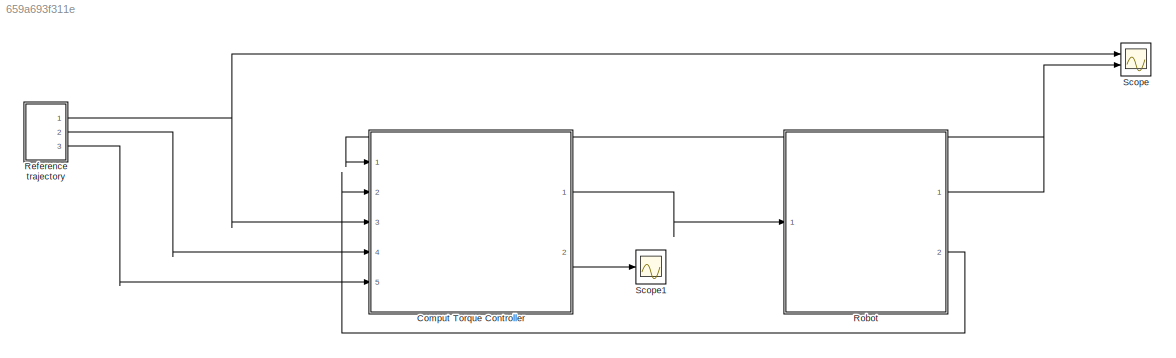
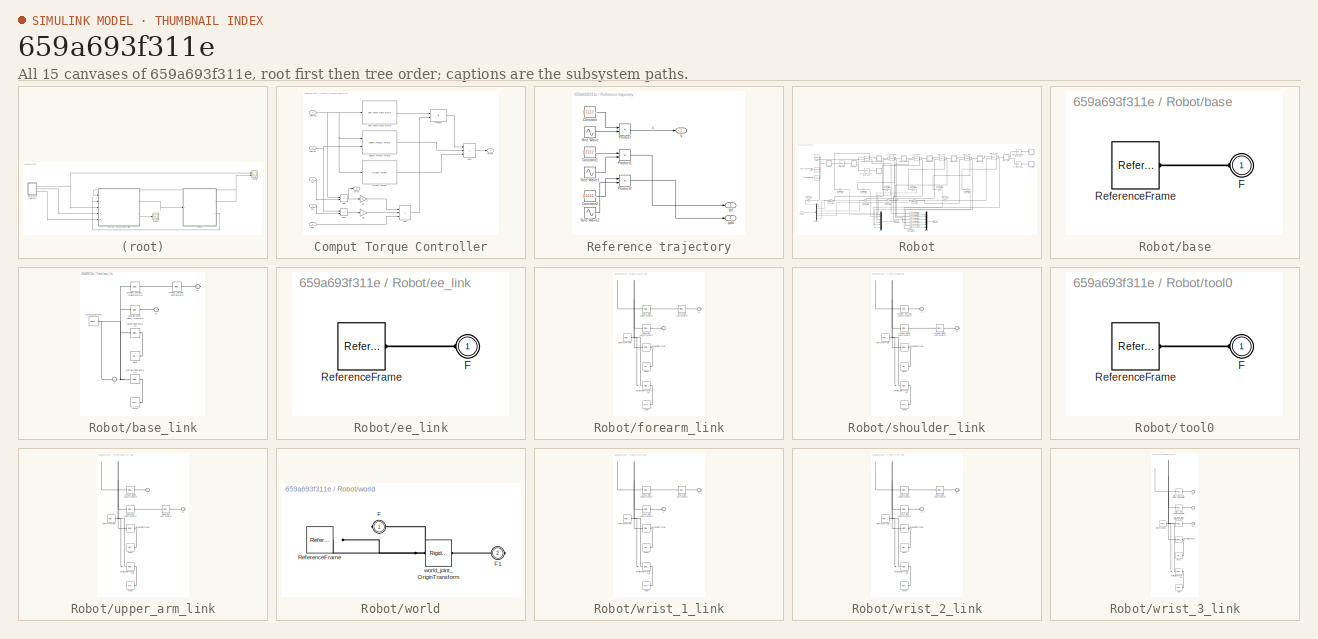
[diagram: thumbnail index - all 15 canvases of the model, root first then tree order]
MODEL slx_659a693f311e
KIND model
CONFIG AbsTol = auto
CONFIG EnableMultiTasking = off
CONFIG FixedStep = auto
CONFIG MaxStep = auto
CONFIG MinStep = auto
CONFIG RelTol = 1e-3
CONFIG SampleTimeConstraint = Unconstrained
CONFIG SolverName = VariableStepAuto
CONFIG StartTime = 0.0
CONFIG StopTime = 6.28
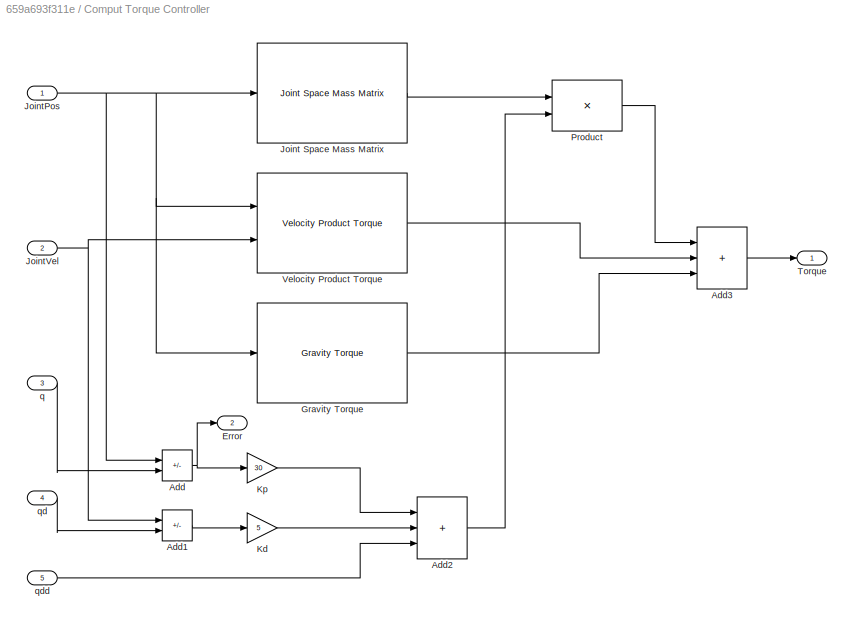
BLOCK [SubSystem] Comput Torque Controller
  Ports = [5, 2]
  RequestExecContextInheritance = off
BLOCK [Sum] Comput Torque Controller/Add
  IconShape = rectangular
  Inputs = -+
  Ports = [2, 1]
BLOCK [Sum] Comput Torque Controller/Add1
  IconShape = rectangular
  Inputs = -+
  Ports = [2, 1]
BLOCK [Sum] Comput Torque Controller/Add2
  IconShape = rectangular
  Inputs = +++
  Ports = [3, 1]
BLOCK [Sum] Comput Torque Controller/Add3
  IconShape = rectangular
  Inputs = +++
  Ports = [3, 1]
BLOCK [Outport] Comput Torque Controller/Error
  Port = 2
BLOCK [Reference] Comput Torque Controller/Gravity Torque  REF=robotmaniplib/Gravity Torque
  Ports = [1, 1]
  SourceBlock = robotmaniplib/Gravity Torque
  SourceProductBaseCode = RO
  SourceType = Gravity Torque
BLOCK [Reference] Comput Torque Controller/Joint Space Mass Matrix  REF=robotmaniplib/Joint Space Mass Matrix
  Ports = [1, 1]
  SourceBlock = robotmaniplib/Joint Space Mass Matrix
  SourceProductBaseCode = RO
  SourceType = Joint Space Mass Matrix
BLOCK [Inport] Comput Torque Controller/JointPos
BLOCK [Inport] Comput Torque Controller/JointVel
  Port = 2
BLOCK [Gain] Comput Torque Controller/Kd
  Gain = 5
BLOCK [Gain] Comput Torque Controller/Kp
  Gain = 30
BLOCK [Product] Comput Torque Controller/Product
  Multiplication = Matrix(*)
  Ports = [2, 1]
BLOCK [Outport] Comput Torque Controller/Torque
BLOCK [Reference] Comput Torque Controller/Velocity Product Torque  REF=robotmaniplib/Velocity Product Torque
  Ports = [2, 1]
  SourceBlock = robotmaniplib/Velocity Product Torque
  SourceProductBaseCode = RO
  SourceType = Velocity Product Torque
BLOCK [Inport] Comput Torque Controller/q
  Port = 3
BLOCK [Inport] Comput Torque Controller/qd
  Port = 4
BLOCK [Inport] Comput Torque Controller/qdd
  Port = 5
BLOCK [SubSystem] Reference trajectory
  Ports = [0, 3]
  RequestExecContextInheritance = off
BLOCK [Constant] Reference trajectory/Constant
  Value = [1 1 1 1 1 1]'
BLOCK [Constant] Reference trajectory/Constant1
  Value = [1 1 1 1 1 1]'
BLOCK [Constant] Reference trajectory/Constant2
  Value = [1 1 1 1 1 1]'
BLOCK [Product] Reference trajectory/Product
  Ports = [2, 1]
BLOCK [Product] Reference trajectory/Product1
  Ports = [2, 1]
BLOCK [Product] Reference trajectory/Product2
  Ports = [2, 1]
BLOCK [Sin] Reference trajectory/Sine Wave
  Ports = [0, 1]
  SampleTime = 0
BLOCK [Sin] Reference trajectory/Sine Wave1
  Phase = pi/2
  Ports = [0, 1]
  SampleTime = 0
BLOCK [Sin] Reference trajectory/Sine Wave2
  Phase = pi
  Ports = [0, 1]
  SampleTime = 0
BLOCK [Outport] Reference trajectory/q
BLOCK [Outport] Reference trajectory/qd
  Port = 2
BLOCK [Outport] Reference trajectory/qdd
  Port = 3
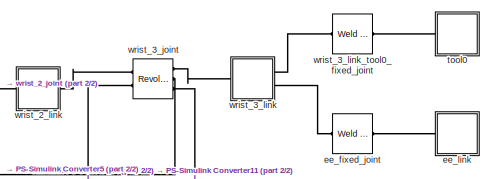
[diagram: Robot - part 1/2, top right region]
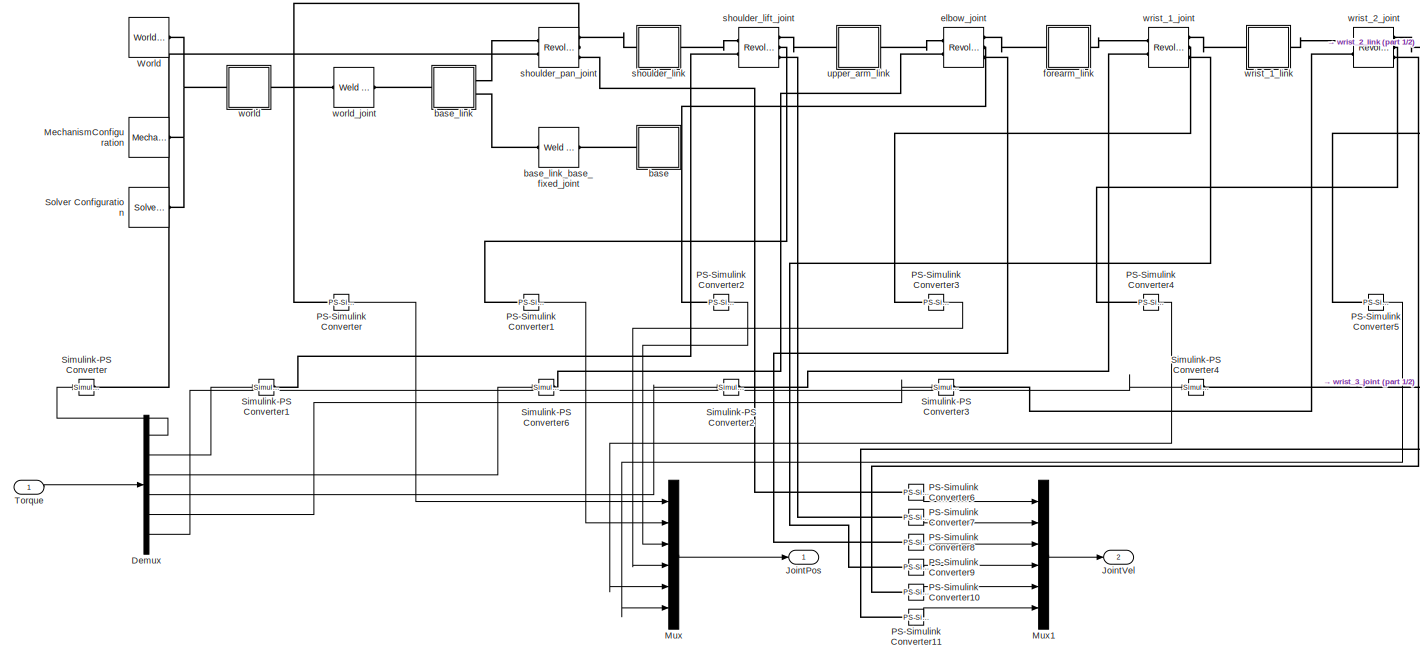
[diagram: Robot - part 2/2, most of the canvas]
BLOCK [SubSystem] Robot
  Ports = [1, 2]
  RequestExecContextInheritance = off
BLOCK [Demux] Robot/Demux
  Outputs = 6
  Ports = [1, 6]
BLOCK [Outport] Robot/JointPos
BLOCK [Outport] Robot/JointVel
  Port = 2
BLOCK [Reference] Robot/MechanismConfiguration  REF=sm_lib/Utilities/Mechanism
Configuration
  Ports = [0, 0, 0, 0, 0, 0, 1]
  SourceBlock = sm_lib/Utilities/Mechanism\nConfiguration
  SourceProductBaseCode = MS
  SourceType = Mechanism\nConfiguration
BLOCK [Mux] Robot/Mux
  DisplayOption = bar
  Inputs = 6
  Ports = [6, 1]
BLOCK [Mux] Robot/Mux1
  DisplayOption = bar
  Inputs = 6
  Ports = [6, 1]
BLOCK [Reference] Robot/PS-Simulink Converter  REF=nesl_utility/PS-Simulink
Converter
  Ports = [0, 1, 0, 0, 0, 1]
  SourceBlock = nesl_utility/PS-Simulink\nConverter
  SourceProductBaseCode = SS,PW,VE
  SourceType = PS-Simulink\nConverter
BLOCK [Reference] Robot/PS-Simulink Converter1  REF=nesl_utility/PS-Simulink
Converter
  Ports = [0, 1, 0, 0, 0, 1]
  SourceBlock = nesl_utility/PS-Simulink\nConverter
  SourceProductBaseCode = SS,PW,VE
  SourceType = PS-Simulink\nConverter
BLOCK [Reference] Robot/PS-Simulink Converter10  REF=nesl_utility/PS-Simulink
Converter
  Ports = [0, 1, 0, 0, 0, 1]
  SourceBlock = nesl_utility/PS-Simulink\nConverter
  SourceProductBaseCode = SS,PW,VE
  SourceType = PS-Simulink\nConverter
BLOCK [Reference] Robot/PS-Simulink Converter11  REF=nesl_utility/PS-Simulink
Converter
  Ports = [0, 1, 0, 0, 0, 1]
  SourceBlock = nesl_utility/PS-Simulink\nConverter
  SourceProductBaseCode = SS,PW,VE
  SourceType = PS-Simulink\nConverter
BLOCK [Reference] Robot/PS-Simulink Converter2  REF=nesl_utility/PS-Simulink
Converter
  Ports = [0, 1, 0, 0, 0, 1]
  SourceBlock = nesl_utility/PS-Simulink\nConverter
  SourceProductBaseCode = SS,PW,VE
  SourceType = PS-Simulink\nConverter
BLOCK [Reference] Robot/PS-Simulink Converter3  REF=nesl_utility/PS-Simulink
Converter
  Ports = [0, 1, 0, 0, 0, 1]
  SourceBlock = nesl_utility/PS-Simulink\nConverter
  SourceProductBaseCode = SS,PW,VE
  SourceType = PS-Simulink\nConverter
BLOCK [Reference] Robot/PS-Simulink Converter4  REF=nesl_utility/PS-Simulink
Converter
  Ports = [0, 1, 0, 0, 0, 1]
  SourceBlock = nesl_utility/PS-Simulink\nConverter
  SourceProductBaseCode = SS,PW,VE
  SourceType = PS-Simulink\nConverter
BLOCK [Reference] Robot/PS-Simulink Converter5  REF=nesl_utility/PS-Simulink
Converter
  Ports = [0, 1, 0, 0, 0, 1]
  SourceBlock = nesl_utility/PS-Simulink\nConverter
  SourceProductBaseCode = SS,PW,VE
  SourceType = PS-Simulink\nConverter
BLOCK [Reference] Robot/PS-Simulink Converter6  REF=nesl_utility/PS-Simulink
Converter
  Ports = [0, 1, 0, 0, 0, 1]
  SourceBlock = nesl_utility/PS-Simulink\nConverter
  SourceProductBaseCode = SS,PW,VE
  SourceType = PS-Simulink\nConverter
BLOCK [Reference] Robot/PS-Simulink Converter7  REF=nesl_utility/PS-Simulink
Converter
  Ports = [0, 1, 0, 0, 0, 1]
  SourceBlock = nesl_utility/PS-Simulink\nConverter
  SourceProductBaseCode = SS,PW,VE
  SourceType = PS-Simulink\nConverter
BLOCK [Reference] Robot/PS-Simulink Converter8  REF=nesl_utility/PS-Simulink
Converter
  Ports = [0, 1, 0, 0, 0, 1]
  SourceBlock = nesl_utility/PS-Simulink\nConverter
  SourceProductBaseCode = SS,PW,VE
  SourceType = PS-Simulink\nConverter
BLOCK [Reference] Robot/PS-Simulink Converter9  REF=nesl_utility/PS-Simulink
Converter
  Ports = [0, 1, 0, 0, 0, 1]
  SourceBlock = nesl_utility/PS-Simulink\nConverter
  SourceProductBaseCode = SS,PW,VE
  SourceType = PS-Simulink\nConverter
BLOCK [Reference] Robot/Simulink-PS Converter  REF=nesl_utility/Simulink-PS
Converter
  Ports = [1, 0, 0, 0, 0, 0, 1]
  SourceBlock = nesl_utility/Simulink-PS\nConverter
  SourceProductBaseCode = SS,PW,VE
  SourceType = Simulink-PS\nConverter
BLOCK [Reference] Robot/Simulink-PS Converter1  REF=nesl_utility/Simulink-PS
Converter
  Ports = [1, 0, 0, 0, 0, 0, 1]
  SourceBlock = nesl_utility/Simulink-PS\nConverter
  SourceProductBaseCode = SS,PW,VE
  SourceType = Simulink-PS\nConverter
BLOCK [Reference] Robot/Simulink-PS Converter2  REF=nesl_utility/Simulink-PS
Converter
  Ports = [1, 0, 0, 0, 0, 0, 1]
  SourceBlock = nesl_utility/Simulink-PS\nConverter
  SourceProductBaseCode = SS,PW,VE
  SourceType = Simulink-PS\nConverter
BLOCK [Reference] Robot/Simulink-PS Converter3  REF=nesl_utility/Simulink-PS
Converter
  Ports = [1, 0, 0, 0, 0, 0, 1]
  SourceBlock = nesl_utility/Simulink-PS\nConverter
  SourceProductBaseCode = SS,PW,VE
  SourceType = Simulink-PS\nConverter
BLOCK [Reference] Robot/Simulink-PS Converter4  REF=nesl_utility/Simulink-PS
Converter
  Ports = [1, 0, 0, 0, 0, 0, 1]
  SourceBlock = nesl_utility/Simulink-PS\nConverter
  SourceProductBaseCode = SS,PW,VE
  SourceType = Simulink-PS\nConverter
BLOCK [Reference] Robot/Simulink-PS Converter6  REF=nesl_utility/Simulink-PS
Converter
  Ports = [1, 0, 0, 0, 0, 0, 1]
  SourceBlock = nesl_utility/Simulink-PS\nConverter
  SourceProductBaseCode = SS,PW,VE
  SourceType = Simulink-PS\nConverter
BLOCK [Reference] Robot/Solver Configuration  REF=nesl_utility/Solver
Configuration
  Ports = [0, 0, 0, 0, 0, 0, 1]
  SourceBlock = nesl_utility/Solver\nConfiguration
  SourceProductBaseCode = SS,PW,VE
  SourceType = Solver\nConfiguration
BLOCK [Inport] Robot/Torque
BLOCK [Reference] Robot/World  REF=sm_lib/Frames and
Transforms/World Frame
  Ports = [0, 0, 0, 0, 0, 0, 1]
  SourceBlock = sm_lib/Frames and\nTransforms/World Frame
  SourceProductBaseCode = MS
  SourceType = World Frame
BLOCK [SubSystem] Robot/base
  Ports = [0, 0, 0, 0, 0, 1]
  RequestExecContextInheritance = off
BLOCK [PMIOPort] Robot/base/F
  Side = Left
BLOCK [Reference] Robot/base/ReferenceFrame  REF=sm_lib/Frames and
Transforms/Reference
Frame
  Ports = [0, 0, 0, 0, 0, 0, 1]
  SourceBlock = sm_lib/Frames and\nTransforms/Reference\nFrame
  SourceProductBaseCode = MS
  SourceType = Reference\nFrame
BLOCK [SubSystem] Robot/base_link
  Ports = [0, 0, 0, 0, 0, 1, 2]
  RequestExecContextInheritance = off
BLOCK [PMIOPort] Robot/base_link/F
  Side = Left
BLOCK [PMIOPort] Robot/base_link/F1
  Port = 3
  Side = Right
BLOCK [PMIOPort] Robot/base_link/F2
  Port = 2
  Side = Right
BLOCK [Reference] Robot/base_link/Inertia  REF=sm_lib/Body Elements/Inertia
  Ports = [0, 0, 0, 0, 0, 0, 1]
  SourceBlock = sm_lib/Body Elements/Inertia
  SourceProductBaseCode = MS
  SourceType = Inertia
BLOCK [Reference] Robot/base_link/InertiaOriginTransform  REF=sm_lib/Frames and
Transforms/Rigid
Transform
  Ports = [0, 0, 0, 0, 0, 1, 1]
  SourceBlock = sm_lib/Frames and\nTransforms/Rigid\nTransform
  SourceProductBaseCode = MS
  SourceType = Rigid\nTransform
BLOCK [Reference] Robot/base_link/ReferenceFrame  REF=sm_lib/Frames and
Transforms/Reference
Frame
  Ports = [0, 0, 0, 0, 0, 0, 1]
  SourceBlock = sm_lib/Frames and\nTransforms/Reference\nFrame
  SourceProductBaseCode = MS
  SourceType = Reference\nFrame
BLOCK [Reference] Robot/base_link/Visual  REF=sm_lib/Body Elements/File Solid
  Ports = [0, 0, 0, 0, 0, 0, 1]
  SourceBlock = sm_lib/Body Elements/File Solid
  SourceProductBaseCode = MS
  SourceType = File Solid
BLOCK [Reference] Robot/base_link/VisualOriginTransform  REF=sm_lib/Frames and
Transforms/Rigid
Transform
  Ports = [0, 0, 0, 0, 0, 1, 1]
  SourceBlock = sm_lib/Frames and\nTransforms/Rigid\nTransform
  SourceProductBaseCode = MS
  SourceType = Rigid\nTransform
BLOCK [Reference] Robot/base_link/base_link_base_fixed_joint_OriginTransform  REF=sm_lib/Frames and
Transforms/Rigid
Transform
  Ports = [0, 0, 0, 0, 0, 1, 1]
  SourceBlock = sm_lib/Frames and\nTransforms/Rigid\nTransform
  SourceProductBaseCode = MS
  SourceType = Rigid\nTransform
BLOCK [Reference] Robot/base_link/shoulder_pan_joint_AxisTransform  REF=sm_lib/Frames and
Transforms/Rigid
Transform
  Ports = [0, 0, 0, 0, 0, 1, 1]
  SourceBlock = sm_lib/Frames and\nTransforms/Rigid\nTransform
  SourceProductBaseCode = MS
  SourceType = Rigid\nTransform
BLOCK [Reference] Robot/base_link/shoulder_pan_joint_OriginTransform  REF=sm_lib/Frames and
Transforms/Rigid
Transform
  Ports = [0, 0, 0, 0, 0, 1, 1]
  SourceBlock = sm_lib/Frames and\nTransforms/Rigid\nTransform
  SourceProductBaseCode = MS
  SourceType = Rigid\nTransform
BLOCK [Reference] Robot/base_link_base_fixed_joint  REF=sm_lib/Joints/Weld Joint
  Ports = [0, 0, 0, 0, 0, 1, 1]
  SourceBlock = sm_lib/Joints/Weld Joint
  SourceProductBaseCode = MS
  SourceType = Weld Joint
BLOCK [Reference] Robot/ee_fixed_joint  REF=sm_lib/Joints/Weld Joint
  Ports = [0, 0, 0, 0, 0, 1, 1]
  SourceBlock = sm_lib/Joints/Weld Joint
  SourceProductBaseCode = MS
  SourceType = Weld Joint
BLOCK [SubSystem] Robot/ee_link
  Ports = [0, 0, 0, 0, 0, 1]
  RequestExecContextInheritance = off
BLOCK [PMIOPort] Robot/ee_link/F
  Side = Left
BLOCK [Reference] Robot/ee_link/ReferenceFrame  REF=sm_lib/Frames and
Transforms/Reference
Frame
  Ports = [0, 0, 0, 0, 0, 0, 1]
  SourceBlock = sm_lib/Frames and\nTransforms/Reference\nFrame
  SourceProductBaseCode = MS
  SourceType = Reference\nFrame
BLOCK [Reference] Robot/elbow_joint  REF=sm_lib/Joints/Revolute Joint
  Ports = [0, 0, 0, 0, 0, 2, 3]
  SourceBlock = sm_lib/Joints/Revolute Joint
  SourceProductBaseCode = MS
  SourceType = Revolute Joint
BLOCK [SubSystem] Robot/forearm_link
  Ports = [0, 0, 0, 0, 0, 1, 1]
  RequestExecContextInheritance = off
BLOCK [PMIOPort] Robot/forearm_link/F
  Side = Left
BLOCK [PMIOPort] Robot/forearm_link/F1
  Port = 2
  Side = Right
BLOCK [Reference] Robot/forearm_link/Inertia  REF=sm_lib/Body Elements/Inertia
  Ports = [0, 0, 0, 0, 0, 0, 1]
  SourceBlock = sm_lib/Body Elements/Inertia
  SourceProductBaseCode = MS
  SourceType = Inertia
BLOCK [Reference] Robot/forearm_link/InertiaOriginTransform  REF=sm_lib/Frames and
Transforms/Rigid
Transform
  Ports = [0, 0, 0, 0, 0, 1, 1]
  SourceBlock = sm_lib/Frames and\nTransforms/Rigid\nTransform
  SourceProductBaseCode = MS
  SourceType = Rigid\nTransform
BLOCK [Reference] Robot/forearm_link/ReferenceFrame  REF=sm_lib/Frames and
Transforms/Reference
Frame
  Ports = [0, 0, 0, 0, 0, 0, 1]
  SourceBlock = sm_lib/Frames and\nTransforms/Reference\nFrame
  SourceProductBaseCode = MS
  SourceType = Reference\nFrame
BLOCK [Reference] Robot/forearm_link/Visual  REF=sm_lib/Body Elements/File Solid
  Ports = [0, 0, 0, 0, 0, 0, 1]
  SourceBlock = sm_lib/Body Elements/File Solid
  SourceProductBaseCode = MS
  SourceType = File Solid
BLOCK [Reference] Robot/forearm_link/VisualOriginTransform  REF=sm_lib/Frames and
Transforms/Rigid
Transform
  Ports = [0, 0, 0, 0, 0, 1, 1]
  SourceBlock = sm_lib/Frames and\nTransforms/Rigid\nTransform
  SourceProductBaseCode = MS
  SourceType = Rigid\nTransform
BLOCK [Reference] Robot/forearm_link/elbow_joint_AxisInvTransform  REF=sm_lib/Frames and
Transforms/Rigid
Transform
  Ports = [0, 0, 0, 0, 0, 1, 1]
  SourceBlock = sm_lib/Frames and\nTransforms/Rigid\nTransform
  SourceProductBaseCode = MS
  SourceType = Rigid\nTransform
BLOCK [Reference] Robot/forearm_link/wrist_1_joint_AxisTransform  REF=sm_lib/Frames and
Transforms/Rigid
Transform
  Ports = [0, 0, 0, 0, 0, 1, 1]
  SourceBlock = sm_lib/Frames and\nTransforms/Rigid\nTransform
  SourceProductBaseCode = MS
  SourceType = Rigid\nTransform
BLOCK [Reference] Robot/forearm_link/wrist_1_joint_OriginTransform  REF=sm_lib/Frames and
Transforms/Rigid
Transform
  Ports = [0, 0, 0, 0, 0, 1, 1]
  SourceBlock = sm_lib/Frames and\nTransforms/Rigid\nTransform
  SourceProductBaseCode = MS
  SourceType = Rigid\nTransform
BLOCK [Reference] Robot/shoulder_lift_joint  REF=sm_lib/Joints/Revolute Joint
  Ports = [0, 0, 0, 0, 0, 2, 3]
  SourceBlock = sm_lib/Joints/Revolute Joint
  SourceProductBaseCode = MS
  SourceType = Revolute Joint
BLOCK [SubSystem] Robot/shoulder_link
  Ports = [0, 0, 0, 0, 0, 1, 1]
  RequestExecContextInheritance = off
BLOCK [PMIOPort] Robot/shoulder_link/F
  Side = Left
BLOCK [PMIOPort] Robot/shoulder_link/F1
  Port = 2
  Side = Right
BLOCK [Reference] Robot/shoulder_link/Inertia  REF=sm_lib/Body Elements/Inertia
  Ports = [0, 0, 0, 0, 0, 0, 1]
  SourceBlock = sm_lib/Body Elements/Inertia
  SourceProductBaseCode = MS
  SourceType = Inertia
BLOCK [Reference] Robot/shoulder_link/InertiaOriginTransform  REF=sm_lib/Frames and
Transforms/Rigid
Transform
  Ports = [0, 0, 0, 0, 0, 1, 1]
  SourceBlock = sm_lib/Frames and\nTransforms/Rigid\nTransform
  SourceProductBaseCode = MS
  SourceType = Rigid\nTransform
BLOCK [Reference] Robot/shoulder_link/ReferenceFrame  REF=sm_lib/Frames and
Transforms/Reference
Frame
  Ports = [0, 0, 0, 0, 0, 0, 1]
  SourceBlock = sm_lib/Frames and\nTransforms/Reference\nFrame
  SourceProductBaseCode = MS
  SourceType = Reference\nFrame
BLOCK [Reference] Robot/shoulder_link/Visual  REF=sm_lib/Body Elements/File Solid
  Ports = [0, 0, 0, 0, 0, 0, 1]
  SourceBlock = sm_lib/Body Elements/File Solid
  SourceProductBaseCode = MS
  SourceType = File Solid
BLOCK [Reference] Robot/shoulder_link/VisualOriginTransform  REF=sm_lib/Frames and
Transforms/Rigid
Transform
  Ports = [0, 0, 0, 0, 0, 1, 1]
  SourceBlock = sm_lib/Frames and\nTransforms/Rigid\nTransform
  SourceProductBaseCode = MS
  SourceType = Rigid\nTransform
BLOCK [Reference] Robot/shoulder_link/shoulder_lift_joint_AxisTransform  REF=sm_lib/Frames and
Transforms/Rigid
Transform
  Ports = [0, 0, 0, 0, 0, 1, 1]
  SourceBlock = sm_lib/Frames and\nTransforms/Rigid\nTransform
  SourceProductBaseCode = MS
  SourceType = Rigid\nTransform
BLOCK [Reference] Robot/shoulder_link/shoulder_lift_joint_OriginTransform  REF=sm_lib/Frames and
Transforms/Rigid
Transform
  Ports = [0, 0, 0, 0, 0, 1, 1]
  SourceBlock = sm_lib/Frames and\nTransforms/Rigid\nTransform
  SourceProductBaseCode = MS
  SourceType = Rigid\nTransform
BLOCK [Reference] Robot/shoulder_link/shoulder_pan_joint_AxisInvTransform  REF=sm_lib/Frames and
Transforms/Rigid
Transform
  Ports = [0, 0, 0, 0, 0, 1, 1]
  SourceBlock = sm_lib/Frames and\nTransforms/Rigid\nTransform
  SourceProductBaseCode = MS
  SourceType = Rigid\nTransform
BLOCK [Reference] Robot/shoulder_pan_joint  REF=sm_lib/Joints/Revolute Joint
  Ports = [0, 0, 0, 0, 0, 2, 3]
  SourceBlock = sm_lib/Joints/Revolute Joint
  SourceProductBaseCode = MS
  SourceType = Revolute Joint
BLOCK [SubSystem] Robot/tool0
  Ports = [0, 0, 0, 0, 0, 1]
  RequestExecContextInheritance = off
BLOCK [PMIOPort] Robot/tool0/F
  Side = Left
BLOCK [Reference] Robot/tool0/ReferenceFrame  REF=sm_lib/Frames and
Transforms/Reference
Frame
  Ports = [0, 0, 0, 0, 0, 0, 1]
  SourceBlock = sm_lib/Frames and\nTransforms/Reference\nFrame
  SourceProductBaseCode = MS
  SourceType = Reference\nFrame
BLOCK [SubSystem] Robot/upper_arm_link
  Ports = [0, 0, 0, 0, 0, 1, 1]
  RequestExecContextInheritance = off
BLOCK [PMIOPort] Robot/upper_arm_link/F
  Side = Left
BLOCK [PMIOPort] Robot/upper_arm_link/F1
  Port = 2
  Side = Right
BLOCK [Reference] Robot/upper_arm_link/Inertia  REF=sm_lib/Body Elements/Inertia
  Ports = [0, 0, 0, 0, 0, 0, 1]
  SourceBlock = sm_lib/Body Elements/Inertia
  SourceProductBaseCode = MS
  SourceType = Inertia
BLOCK [Reference] Robot/upper_arm_link/InertiaOriginTransform  REF=sm_lib/Frames and
Transforms/Rigid
Transform
  Ports = [0, 0, 0, 0, 0, 1, 1]
  SourceBlock = sm_lib/Frames and\nTransforms/Rigid\nTransform
  SourceProductBaseCode = MS
  SourceType = Rigid\nTransform
BLOCK [Reference] Robot/upper_arm_link/ReferenceFrame  REF=sm_lib/Frames and
Transforms/Reference
Frame
  Ports = [0, 0, 0, 0, 0, 0, 1]
  SourceBlock = sm_lib/Frames and\nTransforms/Reference\nFrame
  SourceProductBaseCode = MS
  SourceType = Reference\nFrame
BLOCK [Reference] Robot/upper_arm_link/Visual  REF=sm_lib/Body Elements/File Solid
  Ports = [0, 0, 0, 0, 0, 0, 1]
  SourceBlock = sm_lib/Body Elements/File Solid
  SourceProductBaseCode = MS
  SourceType = File Solid
BLOCK [Reference] Robot/upper_arm_link/VisualOriginTransform  REF=sm_lib/Frames and
Transforms/Rigid
Transform
  Ports = [0, 0, 0, 0, 0, 1, 1]
  SourceBlock = sm_lib/Frames and\nTransforms/Rigid\nTransform
  SourceProductBaseCode = MS
  SourceType = Rigid\nTransform
BLOCK [Reference] Robot/upper_arm_link/elbow_joint_AxisTransform  REF=sm_lib/Frames and
Transforms/Rigid
Transform
  Ports = [0, 0, 0, 0, 0, 1, 1]
  SourceBlock = sm_lib/Frames and\nTransforms/Rigid\nTransform
  SourceProductBaseCode = MS
  SourceType = Rigid\nTransform
BLOCK [Reference] Robot/upper_arm_link/elbow_joint_OriginTransform  REF=sm_lib/Frames and
Transforms/Rigid
Transform
  Ports = [0, 0, 0, 0, 0, 1, 1]
  SourceBlock = sm_lib/Frames and\nTransforms/Rigid\nTransform
  SourceProductBaseCode = MS
  SourceType = Rigid\nTransform
BLOCK [Reference] Robot/upper_arm_link/shoulder_lift_joint_AxisInvTransform  REF=sm_lib/Frames and
Transforms/Rigid
Transform
  Ports = [0, 0, 0, 0, 0, 1, 1]
  SourceBlock = sm_lib/Frames and\nTransforms/Rigid\nTransform
  SourceProductBaseCode = MS
  SourceType = Rigid\nTransform
BLOCK [SubSystem] Robot/world
  Ports = [0, 0, 0, 0, 0, 1, 1]
  RequestExecContextInheritance = off
BLOCK [PMIOPort] Robot/world/F
  Side = Left
BLOCK [PMIOPort] Robot/world/F1
  Port = 2
  Side = Right
BLOCK [Reference] Robot/world/ReferenceFrame  REF=sm_lib/Frames and
Transforms/Reference
Frame
  Ports = [0, 0, 0, 0, 0, 0, 1]
  SourceBlock = sm_lib/Frames and\nTransforms/Reference\nFrame
  SourceProductBaseCode = MS
  SourceType = Reference\nFrame
BLOCK [Reference] Robot/world/world_joint_OriginTransform  REF=sm_lib/Frames and
Transforms/Rigid
Transform
  Ports = [0, 0, 0, 0, 0, 1, 1]
  SourceBlock = sm_lib/Frames and\nTransforms/Rigid\nTransform
  SourceProductBaseCode = MS
  SourceType = Rigid\nTransform
BLOCK [Reference] Robot/world_joint  REF=sm_lib/Joints/Weld Joint
  Ports = [0, 0, 0, 0, 0, 1, 1]
  SourceBlock = sm_lib/Joints/Weld Joint
  SourceProductBaseCode = MS
  SourceType = Weld Joint
BLOCK [Reference] Robot/wrist_1_joint  REF=sm_lib/Joints/Revolute Joint
  Ports = [0, 0, 0, 0, 0, 2, 3]
  SourceBlock = sm_lib/Joints/Revolute Joint
  SourceProductBaseCode = MS
  SourceType = Revolute Joint
BLOCK [SubSystem] Robot/wrist_1_link
  Ports = [0, 0, 0, 0, 0, 1, 1]
  RequestExecContextInheritance = off
BLOCK [PMIOPort] Robot/wrist_1_link/F
  Side = Left
BLOCK [PMIOPort] Robot/wrist_1_link/F1
  Port = 2
  Side = Right
BLOCK [Reference] Robot/wrist_1_link/Inertia  REF=sm_lib/Body Elements/Inertia
  Ports = [0, 0, 0, 0, 0, 0, 1]
  SourceBlock = sm_lib/Body Elements/Inertia
  SourceProductBaseCode = MS
  SourceType = Inertia
BLOCK [Reference] Robot/wrist_1_link/InertiaOriginTransform  REF=sm_lib/Frames and
Transforms/Rigid
Transform
  Ports = [0, 0, 0, 0, 0, 1, 1]
  SourceBlock = sm_lib/Frames and\nTransforms/Rigid\nTransform
  SourceProductBaseCode = MS
  SourceType = Rigid\nTransform
BLOCK [Reference] Robot/wrist_1_link/ReferenceFrame  REF=sm_lib/Frames and
Transforms/Reference
Frame
  Ports = [0, 0, 0, 0, 0, 0, 1]
  SourceBlock = sm_lib/Frames and\nTransforms/Reference\nFrame
  SourceProductBaseCode = MS
  SourceType = Reference\nFrame
BLOCK [Reference] Robot/wrist_1_link/Visual  REF=sm_lib/Body Elements/File Solid
  Ports = [0, 0, 0, 0, 0, 0, 1]
  SourceBlock = sm_lib/Body Elements/File Solid
  SourceProductBaseCode = MS
  SourceType = File Solid
BLOCK [Reference] Robot/wrist_1_link/VisualOriginTransform  REF=sm_lib/Frames and
Transforms/Rigid
Transform
  Ports = [0, 0, 0, 0, 0, 1, 1]
  SourceBlock = sm_lib/Frames and\nTransforms/Rigid\nTransform
  SourceProductBaseCode = MS
  SourceType = Rigid\nTransform
BLOCK [Reference] Robot/wrist_1_link/wrist_1_joint_AxisInvTransform  REF=sm_lib/Frames and
Transforms/Rigid
Transform
  Ports = [0, 0, 0, 0, 0, 1, 1]
  SourceBlock = sm_lib/Frames and\nTransforms/Rigid\nTransform
  SourceProductBaseCode = MS
  SourceType = Rigid\nTransform
BLOCK [Reference] Robot/wrist_1_link/wrist_2_joint_AxisTransform  REF=sm_lib/Frames and
Transforms/Rigid
Transform
  Ports = [0, 0, 0, 0, 0, 1, 1]
  SourceBlock = sm_lib/Frames and\nTransforms/Rigid\nTransform
  SourceProductBaseCode = MS
  SourceType = Rigid\nTransform
BLOCK [Reference] Robot/wrist_1_link/wrist_2_joint_OriginTransform  REF=sm_lib/Frames and
Transforms/Rigid
Transform
  Ports = [0, 0, 0, 0, 0, 1, 1]
  SourceBlock = sm_lib/Frames and\nTransforms/Rigid\nTransform
  SourceProductBaseCode = MS
  SourceType = Rigid\nTransform
BLOCK [Reference] Robot/wrist_2_joint  REF=sm_lib/Joints/Revolute Joint
  Ports = [0, 0, 0, 0, 0, 2, 3]
  SourceBlock = sm_lib/Joints/Revolute Joint
  SourceProductBaseCode = MS
  SourceType = Revolute Joint
BLOCK [SubSystem] Robot/wrist_2_link
  Ports = [0, 0, 0, 0, 0, 1, 1]
  RequestExecContextInheritance = off
BLOCK [PMIOPort] Robot/wrist_2_link/F
  Side = Left
BLOCK [PMIOPort] Robot/wrist_2_link/F1
  Port = 2
  Side = Right
BLOCK [Reference] Robot/wrist_2_link/Inertia  REF=sm_lib/Body Elements/Inertia
  Ports = [0, 0, 0, 0, 0, 0, 1]
  SourceBlock = sm_lib/Body Elements/Inertia
  SourceProductBaseCode = MS
  SourceType = Inertia
BLOCK [Reference] Robot/wrist_2_link/InertiaOriginTransform  REF=sm_lib/Frames and
Transforms/Rigid
Transform
  Ports = [0, 0, 0, 0, 0, 1, 1]
  SourceBlock = sm_lib/Frames and\nTransforms/Rigid\nTransform
  SourceProductBaseCode = MS
  SourceType = Rigid\nTransform
BLOCK [Reference] Robot/wrist_2_link/ReferenceFrame  REF=sm_lib/Frames and
Transforms/Reference
Frame
  Ports = [0, 0, 0, 0, 0, 0, 1]
  SourceBlock = sm_lib/Frames and\nTransforms/Reference\nFrame
  SourceProductBaseCode = MS
  SourceType = Reference\nFrame
BLOCK [Reference] Robot/wrist_2_link/Visual  REF=sm_lib/Body Elements/File Solid
  Ports = [0, 0, 0, 0, 0, 0, 1]
  SourceBlock = sm_lib/Body Elements/File Solid
  SourceProductBaseCode = MS
  SourceType = File Solid
BLOCK [Reference] Robot/wrist_2_link/VisualOriginTransform  REF=sm_lib/Frames and
Transforms/Rigid
Transform
  Ports = [0, 0, 0, 0, 0, 1, 1]
  SourceBlock = sm_lib/Frames and\nTransforms/Rigid\nTransform
  SourceProductBaseCode = MS
  SourceType = Rigid\nTransform
BLOCK [Reference] Robot/wrist_2_link/wrist_2_joint_AxisInvTransform  REF=sm_lib/Frames and
Transforms/Rigid
Transform
  Ports = [0, 0, 0, 0, 0, 1, 1]
  SourceBlock = sm_lib/Frames and\nTransforms/Rigid\nTransform
  SourceProductBaseCode = MS
  SourceType = Rigid\nTransform
BLOCK [Reference] Robot/wrist_2_link/wrist_3_joint_AxisTransform  REF=sm_lib/Frames and
Transforms/Rigid
Transform
  Ports = [0, 0, 0, 0, 0, 1, 1]
  SourceBlock = sm_lib/Frames and\nTransforms/Rigid\nTransform
  SourceProductBaseCode = MS
  SourceType = Rigid\nTransform
BLOCK [Reference] Robot/wrist_2_link/wrist_3_joint_OriginTransform  REF=sm_lib/Frames and
Transforms/Rigid
Transform
  Ports = [0, 0, 0, 0, 0, 1, 1]
  SourceBlock = sm_lib/Frames and\nTransforms/Rigid\nTransform
  SourceProductBaseCode = MS
  SourceType = Rigid\nTransform
BLOCK [Reference] Robot/wrist_3_joint  REF=sm_lib/Joints/Revolute Joint
  Ports = [0, 0, 0, 0, 0, 2, 3]
  SourceBlock = sm_lib/Joints/Revolute Joint
  SourceProductBaseCode = MS
  SourceType = Revolute Joint
BLOCK [SubSystem] Robot/wrist_3_link
  Ports = [0, 0, 0, 0, 0, 1, 2]
  RequestExecContextInheritance = off
BLOCK [PMIOPort] Robot/wrist_3_link/F
  Side = Left
BLOCK [PMIOPort] Robot/wrist_3_link/F1
  Port = 3
  Side = Right
BLOCK [PMIOPort] Robot/wrist_3_link/F2
  Port = 2
  Side = Right
BLOCK [Reference] Robot/wrist_3_link/Inertia  REF=sm_lib/Body Elements/Inertia
  Ports = [0, 0, 0, 0, 0, 0, 1]
  SourceBlock = sm_lib/Body Elements/Inertia
  SourceProductBaseCode = MS
  SourceType = Inertia
BLOCK [Reference] Robot/wrist_3_link/InertiaOriginTransform  REF=sm_lib/Frames and
Transforms/Rigid
Transform
  Ports = [0, 0, 0, 0, 0, 1, 1]
  SourceBlock = sm_lib/Frames and\nTransforms/Rigid\nTransform
  SourceProductBaseCode = MS
  SourceType = Rigid\nTransform
BLOCK [Reference] Robot/wrist_3_link/ReferenceFrame  REF=sm_lib/Frames and
Transforms/Reference
Frame
  Ports = [0, 0, 0, 0, 0, 0, 1]
  SourceBlock = sm_lib/Frames and\nTransforms/Reference\nFrame
  SourceProductBaseCode = MS
  SourceType = Reference\nFrame
BLOCK [Reference] Robot/wrist_3_link/Visual  REF=sm_lib/Body Elements/File Solid
  Ports = [0, 0, 0, 0, 0, 0, 1]
  SourceBlock = sm_lib/Body Elements/File Solid
  SourceProductBaseCode = MS
  SourceType = File Solid
BLOCK [Reference] Robot/wrist_3_link/VisualOriginTransform  REF=sm_lib/Frames and
Transforms/Rigid
Transform
  Ports = [0, 0, 0, 0, 0, 1, 1]
  SourceBlock = sm_lib/Frames and\nTransforms/Rigid\nTransform
  SourceProductBaseCode = MS
  SourceType = Rigid\nTransform
BLOCK [Reference] Robot/wrist_3_link/ee_fixed_joint_OriginTransform  REF=sm_lib/Frames and
Transforms/Rigid
Transform
  Ports = [0, 0, 0, 0, 0, 1, 1]
  SourceBlock = sm_lib/Frames and\nTransforms/Rigid\nTransform
  SourceProductBaseCode = MS
  SourceType = Rigid\nTransform
BLOCK [Reference] Robot/wrist_3_link/wrist_3_joint_AxisInvTransform  REF=sm_lib/Frames and
Transforms/Rigid
Transform
  Ports = [0, 0, 0, 0, 0, 1, 1]
  SourceBlock = sm_lib/Frames and\nTransforms/Rigid\nTransform
  SourceProductBaseCode = MS
  SourceType = Rigid\nTransform
BLOCK [Reference] Robot/wrist_3_link/wrist_3_link_tool0_fixed_joint_OriginTransform  REF=sm_lib/Frames and
Transforms/Rigid
Transform
  Ports = [0, 0, 0, 0, 0, 1, 1]
  SourceBlock = sm_lib/Frames and\nTransforms/Rigid\nTransform
  SourceProductBaseCode = MS
  SourceType = Rigid\nTransform
BLOCK [Reference] Robot/wrist_3_link_tool0_fixed_joint  REF=sm_lib/Joints/Weld Joint
  Ports = [0, 0, 0, 0, 0, 1, 1]
  SourceBlock = sm_lib/Joints/Weld Joint
  SourceProductBaseCode = MS
  SourceType = Weld Joint
BLOCK [Scope] Scope
  Floating = off
  NumInputPorts = 2
  Ports = [2]
  ScopeSpecificationString = Simulink.scopes.TimeScopeBlockCfg('CurrentConfiguration', extmgr.ConfigurationSet(extmgr.Configuration('Core','General UI',true,'FigureColor',[0 0 0]),extmgr.Configuration('Core','Source UI',true),extmgr.Configuration('Sources','WiredSimulink',true),extmgr.Configuration('Visuals','Time Domain',true,'SerializedDisplays',{struct('MinYLimReal','-3.92833','MaxYLimReal','3.92805','YLabelReal','','MinYL...<+2076ch>
BLOCK [Scope] Scope1
  Floating = off
  NumInputPorts = 1
  Ports = [1]
  ScopeSpecificationString = Simulink.scopes.TimeScopeBlockCfg('CurrentConfiguration', extmgr.ConfigurationSet(extmgr.Configuration('Core','General UI',true,'FigureColor',[0 0 0]),extmgr.Configuration('Core','Source UI',true),extmgr.Configuration('Sources','WiredSimulink',true,'DataLoggingVariableName','ScopeData1'),extmgr.Configuration('Visuals','Time Domain',true,'SerializedDisplays',{struct('MinYLimReal','-3.92833','MaxYLi...<+2104ch>
LINE Comput Torque Controller/Add1:1 -> Comput Torque Controller/Kd:1
LINE Comput Torque Controller/Add2:1 -> Comput Torque Controller/Product:2
LINE Comput Torque Controller/Add3:1 -> Comput Torque Controller/Torque:1
NET Comput Torque Controller/Add:1 -> Comput Torque Controller/Error:1, Comput Torque Controller/Kp:1
LINE Comput Torque Controller/Gravity Torque:1 -> Comput Torque Controller/Add3:3
LINE Comput Torque Controller/Joint Space Mass Matrix:1 -> Comput Torque Controller/Product:1
NET Comput Torque Controller/JointPos:1 -> Comput Torque Controller/Add:1, Comput Torque Controller/Gravity Torque:1, Comput Torque Controller/Joint Space Mass Matrix:1, Comput Torque Controller/Velocity Product Torque:1
NET Comput Torque Controller/JointVel:1 -> Comput Torque Controller/Add1:1, Comput Torque Controller/Velocity Product Torque:2
LINE Comput Torque Controller/Kd:1 -> Comput Torque Controller/Add2:2
LINE Comput Torque Controller/Kp:1 -> Comput Torque Controller/Add2:1
LINE Comput Torque Controller/Product:1 -> Comput Torque Controller/Add3:1
LINE Comput Torque Controller/Velocity Product Torque:1 -> Comput Torque Controller/Add3:2
LINE Comput Torque Controller/q:1 -> Comput Torque Controller/Add:2
LINE Comput Torque Controller/qd:1 -> Comput Torque Controller/Add1:2
LINE Comput Torque Controller/qdd:1 -> Comput Torque Controller/Add2:3
LINE Comput Torque Controller:1 -> Robot:1
LINE Comput Torque Controller:2 -> Scope1:1
LINE Reference trajectory/Constant1:1 -> Reference trajectory/Product1:1
LINE Reference trajectory/Constant2:1 -> Reference trajectory/Product2:1
LINE Reference trajectory/Constant:1 -> Reference trajectory/Product:1
LINE Reference trajectory/Product1:1 -> Reference trajectory/qd:1
LINE Reference trajectory/Product2:1 -> Reference trajectory/qdd:1
LINE Reference trajectory/Product:1 -> Reference trajectory/q:1
LINE Reference trajectory/Sine Wave1:1 -> Reference trajectory/Product1:2
LINE Reference trajectory/Sine Wave2:1 -> Reference trajectory/Product2:2
LINE Reference trajectory/Sine Wave:1 -> Reference trajectory/Product:2
NET Reference trajectory:1 -> Comput Torque Controller:3, Scope:1
LINE Reference trajectory:2 -> Comput Torque Controller:4
LINE Reference trajectory:3 -> Comput Torque Controller:5
LINE Robot/Demux:1 -> Robot/Simulink-PS Converter:1
LINE Robot/Demux:2 -> Robot/Simulink-PS Converter1:1
LINE Robot/Demux:3 -> Robot/Simulink-PS Converter6:1
LINE Robot/Demux:4 -> Robot/Simulink-PS Converter2:1
LINE Robot/Demux:5 -> Robot/Simulink-PS Converter3:1
LINE Robot/Demux:6 -> Robot/Simulink-PS Converter4:1
LINE Robot/Mux1:1 -> Robot/JointVel:1
LINE Robot/Mux:1 -> Robot/JointPos:1
LINE Robot/PS-Simulink Converter10:1 -> Robot/Mux1:5
LINE Robot/PS-Simulink Converter11:1 -> Robot/Mux1:6
LINE Robot/PS-Simulink Converter1:1 -> Robot/Mux:2
LINE Robot/PS-Simulink Converter2:1 -> Robot/Mux:3
LINE Robot/PS-Simulink Converter3:1 -> Robot/Mux:4
LINE Robot/PS-Simulink Converter4:1 -> Robot/Mux:5
LINE Robot/PS-Simulink Converter5:1 -> Robot/Mux:6
LINE Robot/PS-Simulink Converter6:1 -> Robot/Mux1:1
LINE Robot/PS-Simulink Converter7:1 -> Robot/Mux1:2
LINE Robot/PS-Simulink Converter8:1 -> Robot/Mux1:3
LINE Robot/PS-Simulink Converter9:1 -> Robot/Mux1:4
LINE Robot/PS-Simulink Converter:1 -> Robot/Mux:1
LINE Robot/Torque:1 -> Robot/Demux:1
NET Robot:1 -> Comput Torque Controller:1, Scope:2
LINE Robot:2 -> Comput Torque Controller:2
PNET net1: Robot/MechanismConfiguration:RConn1 -- Robot/Solver Configuration:RConn1 -- Robot/World:RConn1 -- Robot/world:LConn1
PLINE Robot/PS-Simulink Converter10:LConn1 -- Robot/wrist_2_joint:RConn3
PLINE Robot/PS-Simulink Converter11:LConn1 -- Robot/wrist_3_joint:RConn3
PLINE Robot/PS-Simulink Converter1:LConn1 -- Robot/shoulder_lift_joint:RConn2
PLINE Robot/PS-Simulink Converter2:LConn1 -- Robot/elbow_joint:RConn2
PLINE Robot/PS-Simulink Converter3:LConn1 -- Robot/wrist_1_joint:RConn2
PLINE Robot/PS-Simulink Converter4:LConn1 -- Robot/wrist_2_joint:RConn2
PLINE Robot/PS-Simulink Converter5:LConn1 -- Robot/wrist_3_joint:RConn2
PLINE Robot/PS-Simulink Converter6:LConn1 -- Robot/shoulder_pan_joint:RConn3
PLINE Robot/PS-Simulink Converter7:LConn1 -- Robot/shoulder_lift_joint:RConn3
PLINE Robot/PS-Simulink Converter8:LConn1 -- Robot/elbow_joint:RConn3
PLINE Robot/PS-Simulink Converter9:LConn1 -- Robot/wrist_1_joint:RConn3
PLINE Robot/PS-Simulink Converter:LConn1 -- Robot/shoulder_pan_joint:RConn2
PLINE Robot/Simulink-PS Converter1:RConn1 -- Robot/shoulder_lift_joint:LConn2
PLINE Robot/Simulink-PS Converter2:RConn1 -- Robot/wrist_1_joint:LConn2
PLINE Robot/Simulink-PS Converter3:RConn1 -- Robot/wrist_2_joint:LConn2
PLINE Robot/Simulink-PS Converter4:RConn1 -- Robot/wrist_3_joint:LConn2
PLINE Robot/Simulink-PS Converter6:RConn1 -- Robot/elbow_joint:LConn2
PLINE Robot/Simulink-PS Converter:RConn1 -- Robot/shoulder_pan_joint:LConn2
PLINE Robot/base/F:RConn1 -- Robot/base/ReferenceFrame:RConn1
PLINE Robot/base:LConn1 -- Robot/base_link_base_fixed_joint:RConn1
PLINE Robot/base_link/F1:RConn1 -- Robot/base_link/base_link_base_fixed_joint_OriginTransform:RConn1
PLINE Robot/base_link/F2:RConn1 -- Robot/base_link/shoulder_pan_joint_AxisTransform:RConn1
PNET net2: Robot/base_link/F:RConn1 -- Robot/base_link/InertiaOriginTransform:LConn1 -- Robot/base_link/ReferenceFrame:RConn1 -- Robot/base_link/VisualOriginTransform:LConn1 -- Robot/base_link/base_link_base_fixed_joint_OriginTransform:LConn1 -- Robot/base_link/shoulder_pan_joint_OriginTransform:LConn1
PLINE Robot/base_link/Inertia:RConn1 -- Robot/base_link/InertiaOriginTransform:RConn1
PLINE Robot/base_link/Visual:RConn1 -- Robot/base_link/VisualOriginTransform:RConn1
PLINE Robot/base_link/shoulder_pan_joint_AxisTransform:LConn1 -- Robot/base_link/shoulder_pan_joint_OriginTransform:RConn1
PLINE Robot/base_link:LConn1 -- Robot/world_joint:RConn1
PLINE Robot/base_link:RConn1 -- Robot/shoulder_pan_joint:LConn1
PLINE Robot/base_link:RConn2 -- Robot/base_link_base_fixed_joint:LConn1
PLINE Robot/ee_fixed_joint:LConn1 -- Robot/wrist_3_link:RConn2
PLINE Robot/ee_fixed_joint:RConn1 -- Robot/ee_link:LConn1
PLINE Robot/ee_link/F:RConn1 -- Robot/ee_link/ReferenceFrame:RConn1
PLINE Robot/elbow_joint:LConn1 -- Robot/upper_arm_link:RConn1
PLINE Robot/elbow_joint:RConn1 -- Robot/forearm_link:LConn1
PLINE Robot/forearm_link/F1:RConn1 -- Robot/forearm_link/wrist_1_joint_AxisTransform:RConn1
PLINE Robot/forearm_link/F:RConn1 -- Robot/forearm_link/elbow_joint_AxisInvTransform:RConn1
PLINE Robot/forearm_link/Inertia:RConn1 -- Robot/forearm_link/InertiaOriginTransform:RConn1
PNET net3: Robot/forearm_link/InertiaOriginTransform:LConn1 -- Robot/forearm_link/ReferenceFrame:RConn1 -- Robot/forearm_link/VisualOriginTransform:LConn1 -- Robot/forearm_link/elbow_joint_AxisInvTransform:LConn1 -- Robot/forearm_link/wrist_1_joint_OriginTransform:LConn1
PLINE Robot/forearm_link/Visual:RConn1 -- Robot/forearm_link/VisualOriginTransform:RConn1
PLINE Robot/forearm_link/wrist_1_joint_AxisTransform:LConn1 -- Robot/forearm_link/wrist_1_joint_OriginTransform:RConn1
PLINE Robot/forearm_link:RConn1 -- Robot/wrist_1_joint:LConn1
PLINE Robot/shoulder_lift_joint:LConn1 -- Robot/shoulder_link:RConn1
PLINE Robot/shoulder_lift_joint:RConn1 -- Robot/upper_arm_link:LConn1
PLINE Robot/shoulder_link/F1:RConn1 -- Robot/shoulder_link/shoulder_lift_joint_AxisTransform:RConn1
PLINE Robot/shoulder_link/F:RConn1 -- Robot/shoulder_link/shoulder_pan_joint_AxisInvTransform:RConn1
PLINE Robot/shoulder_link/Inertia:RConn1 -- Robot/shoulder_link/InertiaOriginTransform:RConn1
PNET net4: Robot/shoulder_link/InertiaOriginTransform:LConn1 -- Robot/shoulder_link/ReferenceFrame:RConn1 -- Robot/shoulder_link/VisualOriginTransform:LConn1 -- Robot/shoulder_link/shoulder_lift_joint_OriginTransform:LConn1 -- Robot/shoulder_link/shoulder_pan_joint_AxisInvTransform:LConn1
PLINE Robot/shoulder_link/Visual:RConn1 -- Robot/shoulder_link/VisualOriginTransform:RConn1
PLINE Robot/shoulder_link/shoulder_lift_joint_AxisTransform:LConn1 -- Robot/shoulder_link/shoulder_lift_joint_OriginTransform:RConn1
PLINE Robot/shoulder_link:LConn1 -- Robot/shoulder_pan_joint:RConn1
PLINE Robot/tool0/F:RConn1 -- Robot/tool0/ReferenceFrame:RConn1
PLINE Robot/tool0:LConn1 -- Robot/wrist_3_link_tool0_fixed_joint:RConn1
PLINE Robot/upper_arm_link/F1:RConn1 -- Robot/upper_arm_link/elbow_joint_AxisTransform:RConn1
PLINE Robot/upper_arm_link/F:RConn1 -- Robot/upper_arm_link/shoulder_lift_joint_AxisInvTransform:RConn1
PLINE Robot/upper_arm_link/Inertia:RConn1 -- Robot/upper_arm_link/InertiaOriginTransform:RConn1
PNET net5: Robot/upper_arm_link/InertiaOriginTransform:LConn1 -- Robot/upper_arm_link/ReferenceFrame:RConn1 -- Robot/upper_arm_link/VisualOriginTransform:LConn1 -- Robot/upper_arm_link/elbow_joint_OriginTransform:LConn1 -- Robot/upper_arm_link/shoulder_lift_joint_AxisInvTransform:LConn1
PLINE Robot/upper_arm_link/Visual:RConn1 -- Robot/upper_arm_link/VisualOriginTransform:RConn1
PLINE Robot/upper_arm_link/elbow_joint_AxisTransform:LConn1 -- Robot/upper_arm_link/elbow_joint_OriginTransform:RConn1
PLINE Robot/world/F1:RConn1 -- Robot/world/world_joint_OriginTransform:RConn1
PNET net6: Robot/world/F:RConn1 -- Robot/world/ReferenceFrame:RConn1 -- Robot/world/world_joint_OriginTransform:LConn1
PLINE Robot/world:RConn1 -- Robot/world_joint:LConn1
PLINE Robot/wrist_1_joint:RConn1 -- Robot/wrist_1_link:LConn1
PLINE Robot/wrist_1_link/F1:RConn1 -- Robot/wrist_1_link/wrist_2_joint_AxisTransform:RConn1
PLINE Robot/wrist_1_link/F:RConn1 -- Robot/wrist_1_link/wrist_1_joint_AxisInvTransform:RConn1
PLINE Robot/wrist_1_link/Inertia:RConn1 -- Robot/wrist_1_link/InertiaOriginTransform:RConn1
PNET net7: Robot/wrist_1_link/InertiaOriginTransform:LConn1 -- Robot/wrist_1_link/ReferenceFrame:RConn1 -- Robot/wrist_1_link/VisualOriginTransform:LConn1 -- Robot/wrist_1_link/wrist_1_joint_AxisInvTransform:LConn1 -- Robot/wrist_1_link/wrist_2_joint_OriginTransform:LConn1
PLINE Robot/wrist_1_link/Visual:RConn1 -- Robot/wrist_1_link/VisualOriginTransform:RConn1
PLINE Robot/wrist_1_link/wrist_2_joint_AxisTransform:LConn1 -- Robot/wrist_1_link/wrist_2_joint_OriginTransform:RConn1
PLINE Robot/wrist_1_link:RConn1 -- Robot/wrist_2_joint:LConn1
PLINE Robot/wrist_2_joint:RConn1 -- Robot/wrist_2_link:LConn1
PLINE Robot/wrist_2_link/F1:RConn1 -- Robot/wrist_2_link/wrist_3_joint_AxisTransform:RConn1
PLINE Robot/wrist_2_link/F:RConn1 -- Robot/wrist_2_link/wrist_2_joint_AxisInvTransform:RConn1
PLINE Robot/wrist_2_link/Inertia:RConn1 -- Robot/wrist_2_link/InertiaOriginTransform:RConn1
PNET net8: Robot/wrist_2_link/InertiaOriginTransform:LConn1 -- Robot/wrist_2_link/ReferenceFrame:RConn1 -- Robot/wrist_2_link/VisualOriginTransform:LConn1 -- Robot/wrist_2_link/wrist_2_joint_AxisInvTransform:LConn1 -- Robot/wrist_2_link/wrist_3_joint_OriginTransform:LConn1
PLINE Robot/wrist_2_link/Visual:RConn1 -- Robot/wrist_2_link/VisualOriginTransform:RConn1
PLINE Robot/wrist_2_link/wrist_3_joint_AxisTransform:LConn1 -- Robot/wrist_2_link/wrist_3_joint_OriginTransform:RConn1
PLINE Robot/wrist_2_link:RConn1 -- Robot/wrist_3_joint:LConn1
PLINE Robot/wrist_3_joint:RConn1 -- Robot/wrist_3_link:LConn1
PLINE Robot/wrist_3_link/F1:RConn1 -- Robot/wrist_3_link/ee_fixed_joint_OriginTransform:RConn1
PLINE Robot/wrist_3_link/F2:RConn1 -- Robot/wrist_3_link/wrist_3_link_tool0_fixed_joint_OriginTransform:RConn1
PLINE Robot/wrist_3_link/F:RConn1 -- Robot/wrist_3_link/wrist_3_joint_AxisInvTransform:RConn1
PLINE Robot/wrist_3_link/Inertia:RConn1 -- Robot/wrist_3_link/InertiaOriginTransform:RConn1
PNET net9: Robot/wrist_3_link/InertiaOriginTransform:LConn1 -- Robot/wrist_3_link/ReferenceFrame:RConn1 -- Robot/wrist_3_link/VisualOriginTransform:LConn1 -- Robot/wrist_3_link/ee_fixed_joint_OriginTransform:LConn1 -- Robot/wrist_3_link/wrist_3_joint_AxisInvTransform:LConn1 -- Robot/wrist_3_link/wrist_3_link_tool0_fixed_joint_OriginTransform:LConn1
PLINE Robot/wrist_3_link/Visual:RConn1 -- Robot/wrist_3_link/VisualOriginTransform:RConn1
PLINE Robot/wrist_3_link:RConn1 -- Robot/wrist_3_link_tool0_fixed_joint:LConn1
note: NET lines group one-source signal fan-out (src -> all destinations, sorted); 1:1 wires keep LINE; PNET lines group multi-terminal physical nets as a canonical sorted terminal list (undirected conserving connections); 2-terminal nets keep the pairwise PLINE form
